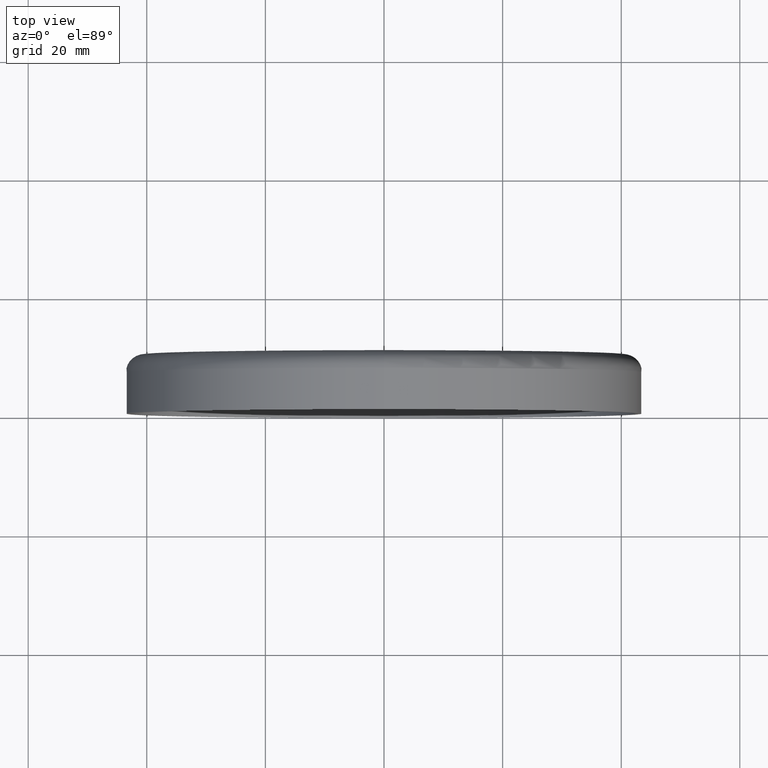
[diagram: clean part render]
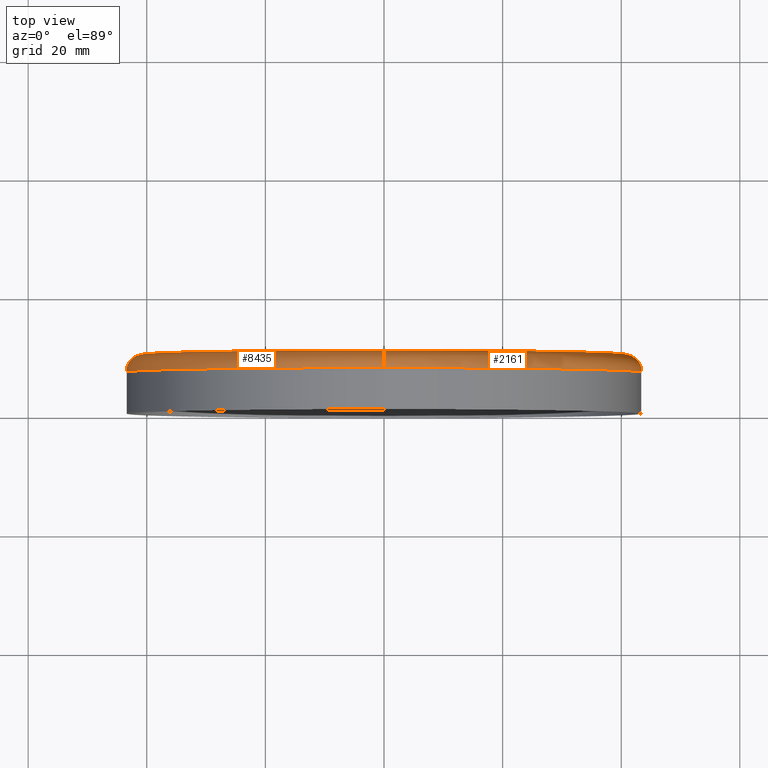
[diagram: same view with one multi-face feature highlighted, each face labeled with its STEP entity id]
A machine part, top view. The highlighted faces form ONE feature: a constant-radius fillet chain: 2 tangent blend faces with common blend radius 3 mm. The faces share edges in the B-rep.
Their STEP definitions:
[1] entity #8435 (Torus):
#253 = FACE_OUTER_BOUND ( 'NONE', #3797, .T. ) ;
#317 = VERTEX_POINT ( 'NONE', #7155 ) ;
#1484 = CIRCLE ( 'NONE', #6354, 3.000000000000002665 ) ;
#2978 = ORIENTED_EDGE ( 'NONE', *, *, #13274, .T. ) ;
#3797 = EDGE_LOOP ( 'NONE', ( #4702, #2978, #10528, #3981 ) ) ;
#3822 = AXIS2_PLACEMENT_3D ( 'NONE', #12956, #9602, #8404 ) ;
#3838 = DIRECTION ( 'NONE',  ( -0.000000000000000000, -1.000000000000000000, -0.000000000000000000 ) ) ;
#3981 = ORIENTED_EDGE ( 'NONE', *, *, #13120, .F. ) ;
#3990 = TOROIDAL_SURFACE ( 'NONE', #6706, 40.49999999999999289, 3.000000000000000888 ) ;
#4071 = EDGE_CURVE ( 'NONE', #14734, #12641, #5655, .T. ) ;
#4128 = DIRECTION ( 'NONE',  ( 0.000000000000000000, 0.000000000000000000, 1.000000000000000000 ) ) ;
#4702 = ORIENTED_EDGE ( 'NONE', *, *, #4071, .F. ) ;
#5083 = CARTESIAN_POINT ( 'NONE',  ( 0.000000000000000000, 6.999999999999999112, 0.000000000000000000 ) ) ;
#5655 = CIRCLE ( 'NONE', #3822, 3.000000000000002665 ) ;
#5691 = CARTESIAN_POINT ( 'NONE',  ( 0.000000000000000000, 6.999999999999999112, 0.000000000000000000 ) ) ;
#5777 = CIRCLE ( 'NONE', #8369, 40.49999999999999289 ) ;
#6354 = AXIS2_PLACEMENT_3D ( 'NONE', #12178, #8853, #4128 ) ;
#6706 = AXIS2_PLACEMENT_3D ( 'NONE', #5083, #3838, #14230 ) ;
#7155 = CARTESIAN_POINT ( 'NONE',  ( 0.000000000000000000, 9.999999999999998224, -40.49999999999999289 ) ) ;
#7297 = VERTEX_POINT ( 'NONE', #13535 ) ;
#8339 = CARTESIAN_POINT ( 'NONE',  ( 5.143516556418882533E-15, 9.999999999999998224, 40.49999999999999289 ) ) ;
#8369 = AXIS2_PLACEMENT_3D ( 'NONE', #12380, #13512, #9009 ) ;
#8404 = DIRECTION ( 'NONE',  ( -1.224646799147351975E-16, 0.000000000000000000, -1.000000000000000000 ) ) ;
#8435 = ADVANCED_FACE ( 'NONE', ( #253 ), #3990, .T. ) ;
#8853 = DIRECTION ( 'NONE',  ( -1.000000000000000000, 0.000000000000000000, 0.000000000000000000 ) ) ;
#9009 = DIRECTION ( 'NONE',  ( 0.000000000000000000, 0.000000000000000000, -1.000000000000000000 ) ) ;
#9602 = DIRECTION ( 'NONE',  ( 1.000000000000000000, 0.000000000000000000, -1.224646799147353207E-16 ) ) ;
#9982 = AXIS2_PLACEMENT_3D ( 'NONE', #5691, #13561, #10103 ) ;
#10103 = DIRECTION ( 'NONE',  ( 0.000000000000000000, 0.000000000000000000, -1.000000000000000000 ) ) ;
#10175 = EDGE_CURVE ( 'NONE', #317, #7297, #1484, .T. ) ;
#10528 = ORIENTED_EDGE ( 'NONE', *, *, #10175, .T. ) ;
#11197 = CIRCLE ( 'NONE', #9982, 43.50000000000000000 ) ;
#11968 = CARTESIAN_POINT ( 'NONE',  ( 5.327213576290985256E-15, 6.999999999999999112, 43.50000000000000000 ) ) ;
#12178 = CARTESIAN_POINT ( 'NONE',  ( 0.000000000000000000, 6.999999999999999112, -40.49999999999999289 ) ) ;
#12380 = CARTESIAN_POINT ( 'NONE',  ( 0.000000000000000000, 9.999999999999998224, 0.000000000000000000 ) ) ;
#12641 = VERTEX_POINT ( 'NONE', #11968 ) ;
#12956 = CARTESIAN_POINT ( 'NONE',  ( 4.959819536546779811E-15, 6.999999999999999112, 40.49999999999999289 ) ) ;
#13120 = EDGE_CURVE ( 'NONE', #12641, #7297, #11197, .T. ) ;
#13274 = EDGE_CURVE ( 'NONE', #14734, #317, #5777, .T. ) ;
#13512 = DIRECTION ( 'NONE',  ( -0.000000000000000000, -1.000000000000000000, -0.000000000000000000 ) ) ;
#13535 = CARTESIAN_POINT ( 'NONE',  ( 0.000000000000000000, 6.999999999999999112, -43.50000000000000000 ) ) ;
#13561 = DIRECTION ( 'NONE',  ( -0.000000000000000000, -1.000000000000000000, -0.000000000000000000 ) ) ;
#14230 = DIRECTION ( 'NONE',  ( 0.000000000000000000, 0.000000000000000000, -1.000000000000000000 ) ) ;
#14734 = VERTEX_POINT ( 'NONE', #8339 ) ;
[2] entity #2161 (Torus):
#317 = VERTEX_POINT ( 'NONE', #7155 ) ;
#705 = TOROIDAL_SURFACE ( 'NONE', #10884, 40.49999999999999289, 3.000000000000000888 ) ;
#917 = EDGE_LOOP ( 'NONE', ( #13415, #4370, #4789, #6334 ) ) ;
#1005 = DIRECTION ( 'NONE',  ( -0.000000000000000000, -1.000000000000000000, -0.000000000000000000 ) ) ;
#1062 = CARTESIAN_POINT ( 'NONE',  ( 0.000000000000000000, 6.999999999999999112, 0.000000000000000000 ) ) ;
#1484 = CIRCLE ( 'NONE', #6354, 3.000000000000002665 ) ;
#2161 = ADVANCED_FACE ( 'NONE', ( #7108 ), #705, .T. ) ;
#2413 = CIRCLE ( 'NONE', #14673, 43.50000000000000000 ) ;
#3822 = AXIS2_PLACEMENT_3D ( 'NONE', #12956, #9602, #8404 ) ;
#4071 = EDGE_CURVE ( 'NONE', #14734, #12641, #5655, .T. ) ;
#4128 = DIRECTION ( 'NONE',  ( 0.000000000000000000, 0.000000000000000000, 1.000000000000000000 ) ) ;
#4370 = ORIENTED_EDGE ( 'NONE', *, *, #4071, .T. ) ;
#4789 = ORIENTED_EDGE ( 'NONE', *, *, #6376, .F. ) ;
#5655 = CIRCLE ( 'NONE', #3822, 3.000000000000002665 ) ;
#6334 = ORIENTED_EDGE ( 'NONE', *, *, #10175, .F. ) ;
#6354 = AXIS2_PLACEMENT_3D ( 'NONE', #12178, #8853, #4128 ) ;
#6376 = EDGE_CURVE ( 'NONE', #7297, #12641, #2413, .T. ) ;
#6562 = CARTESIAN_POINT ( 'NONE',  ( 0.000000000000000000, 6.999999999999999112, 0.000000000000000000 ) ) ;
#7108 = FACE_OUTER_BOUND ( 'NONE', #917, .T. ) ;
#7155 = CARTESIAN_POINT ( 'NONE',  ( 0.000000000000000000, 9.999999999999998224, -40.49999999999999289 ) ) ;
#7297 = VERTEX_POINT ( 'NONE', #13535 ) ;
#7911 = CARTESIAN_POINT ( 'NONE',  ( 0.000000000000000000, 9.999999999999998224, 0.000000000000000000 ) ) ;
#8339 = CARTESIAN_POINT ( 'NONE',  ( 5.143516556418882533E-15, 9.999999999999998224, 40.49999999999999289 ) ) ;
#8404 = DIRECTION ( 'NONE',  ( -1.224646799147351975E-16, 0.000000000000000000, -1.000000000000000000 ) ) ;
#8853 = DIRECTION ( 'NONE',  ( -1.000000000000000000, 0.000000000000000000, 0.000000000000000000 ) ) ;
#8914 = DIRECTION ( 'NONE',  ( -0.000000000000000000, -1.000000000000000000, -0.000000000000000000 ) ) ;
#8954 = DIRECTION ( 'NONE',  ( 0.000000000000000000, 0.000000000000000000, -1.000000000000000000 ) ) ;
#9602 = DIRECTION ( 'NONE',  ( 1.000000000000000000, 0.000000000000000000, -1.224646799147353207E-16 ) ) ;
#9977 = EDGE_CURVE ( 'NONE', #317, #14734, #10739, .T. ) ;
#10175 = EDGE_CURVE ( 'NONE', #317, #7297, #1484, .T. ) ;
#10410 = DIRECTION ( 'NONE',  ( 0.000000000000000000, 0.000000000000000000, -1.000000000000000000 ) ) ;
#10739 = CIRCLE ( 'NONE', #12229, 40.49999999999999289 ) ;
#10884 = AXIS2_PLACEMENT_3D ( 'NONE', #6562, #1005, #8954 ) ;
#11151 = DIRECTION ( 'NONE',  ( 0.000000000000000000, 0.000000000000000000, -1.000000000000000000 ) ) ;
#11968 = CARTESIAN_POINT ( 'NONE',  ( 5.327213576290985256E-15, 6.999999999999999112, 43.50000000000000000 ) ) ;
#12178 = CARTESIAN_POINT ( 'NONE',  ( 0.000000000000000000, 6.999999999999999112, -40.49999999999999289 ) ) ;
#12229 = AXIS2_PLACEMENT_3D ( 'NONE', #7911, #13619, #10410 ) ;
#12641 = VERTEX_POINT ( 'NONE', #11968 ) ;
#12956 = CARTESIAN_POINT ( 'NONE',  ( 4.959819536546779811E-15, 6.999999999999999112, 40.49999999999999289 ) ) ;
#13415 = ORIENTED_EDGE ( 'NONE', *, *, #9977, .T. ) ;
#13535 = CARTESIAN_POINT ( 'NONE',  ( 0.000000000000000000, 6.999999999999999112, -43.50000000000000000 ) ) ;
#13619 = DIRECTION ( 'NONE',  ( -0.000000000000000000, -1.000000000000000000, -0.000000000000000000 ) ) ;
#14673 = AXIS2_PLACEMENT_3D ( 'NONE', #1062, #8914, #11151 ) ;
#14734 = VERTEX_POINT ( 'NONE', #8339 ) ;